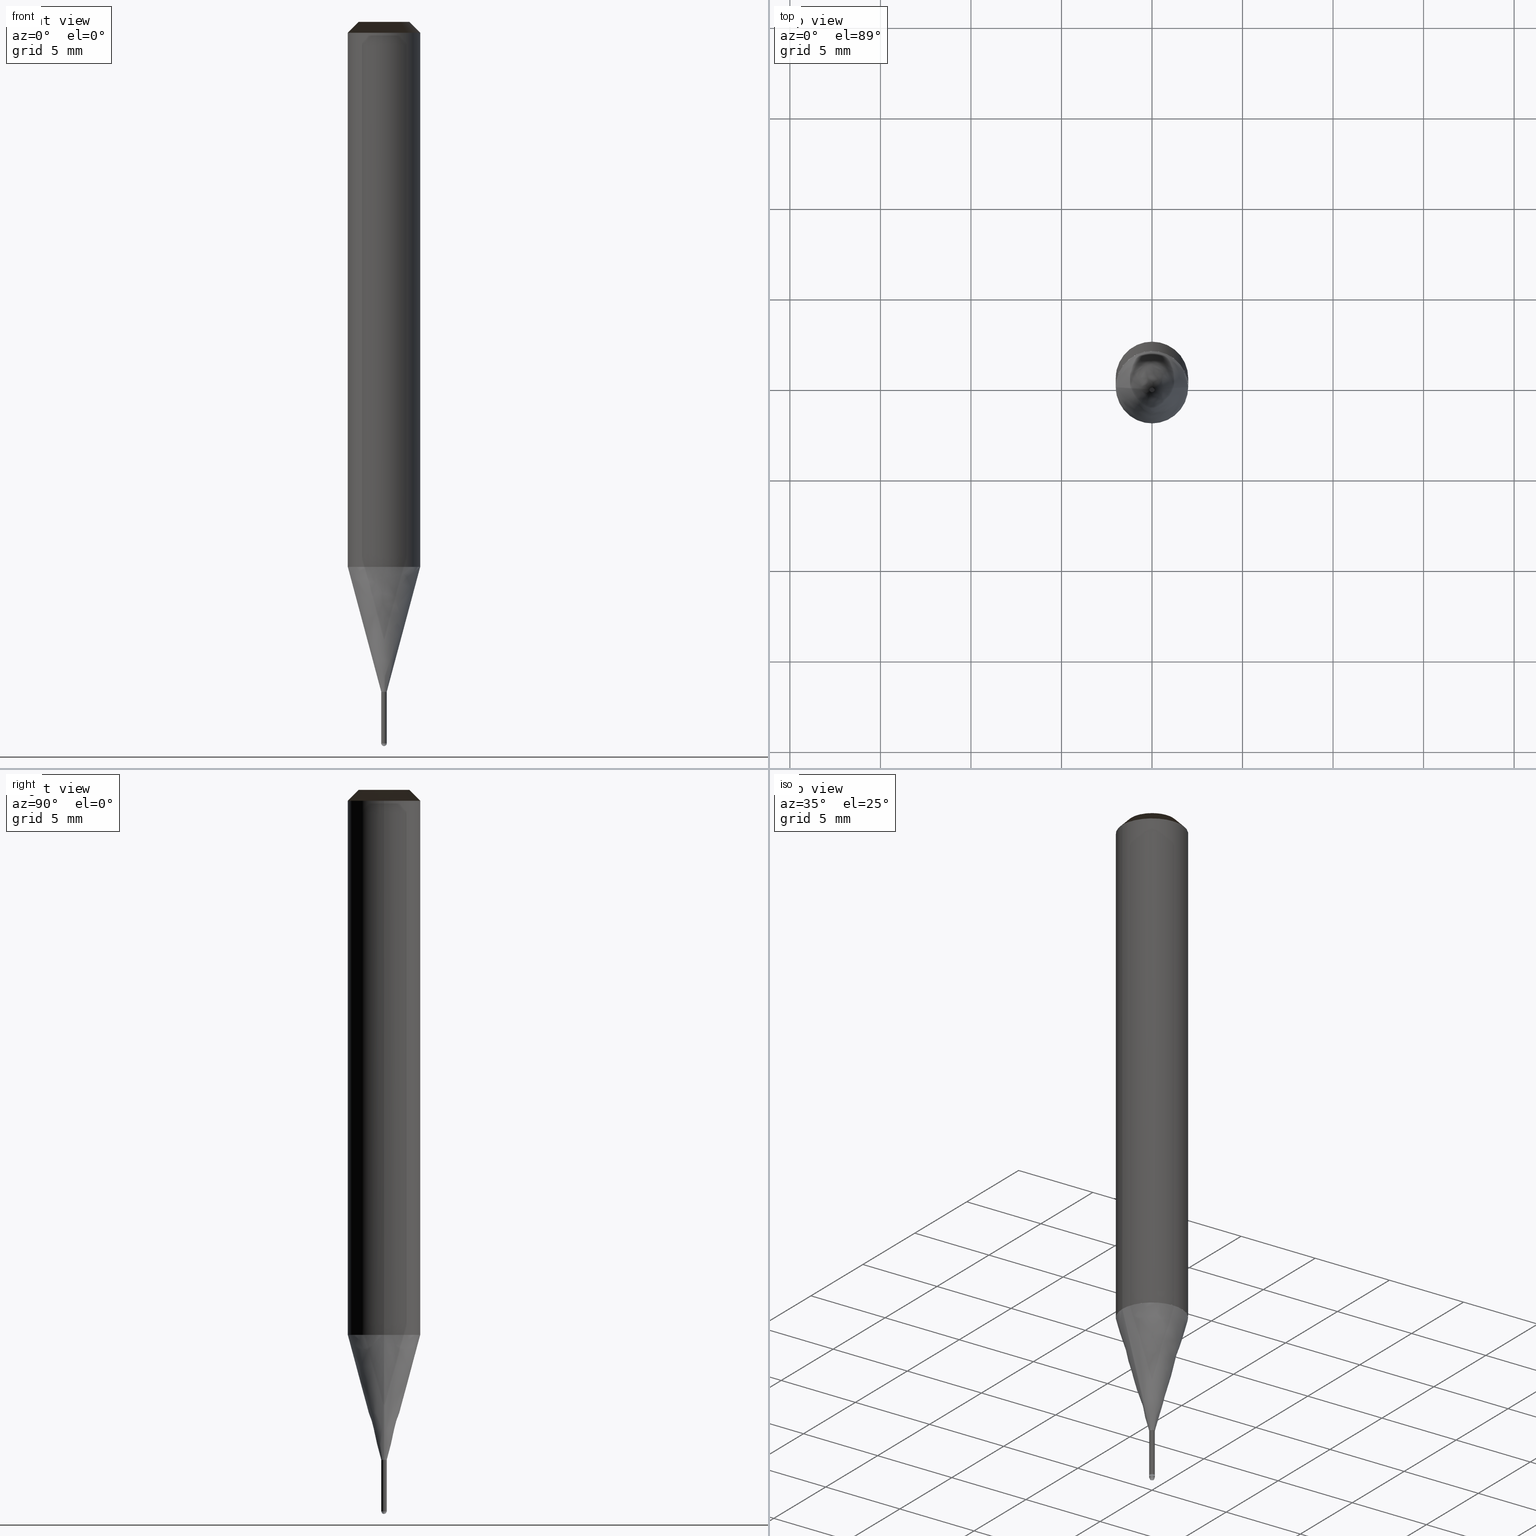
[diagram: canonical four-view strip — front | top / right | iso, engineering-drawing reading convention]
A machine part, canonical four-view strip (front | top / right | iso — engineering-drawing reading convention). The complete STEP part file that produces these views, byte-faithful:
ISO-10303-21;
HEADER;
/* Generated by ISBE GmbH (www.isbe.de) */
/* OPTION: using custom schema-name function */

FILE_DESCRIPTION(
/* description */ (''),
/* implementation_level */ '2;1');

FILE_NAME(
/*name*/ 'SHBN-2003-030-S04-STH',
/*time_stamp*/'2023-6-19T8:48:45',
/*author*/ ('ISBE GmbH'),
/*organization*/ ('ISBE GmbH'),
/*preprocessor_version*/ 'STEP IO v1.0',
/*originating_system*/ '',
/*authorisation*/ '');

FILE_SCHEMA (('AUTOMOTIVE_DESIGN'));
ENDSEC;

DATA;
#10=SHAPE_DEFINITION_REPRESENTATION(#11,#57);
#11=PRODUCT_DEFINITION_SHAPE('Document','',#13);
#12=PRODUCT_DEFINITION_CONTEXT('3D Mechanical Parts',#17,'design');
#13=PRODUCT_DEFINITION('A','First version',#14,#12);
#14=PRODUCT_DEFINITION_FORMATION_WITH_SPECIFIED_SOURCE('A','First version',#19,.MADE.);
#15=PRODUCT_RELATED_PRODUCT_CATEGORY('tool','tool',(#19));
#16=APPLICATION_PROTOCOL_DEFINITION('Draft International Standard', 'automotive_design',1999,#17);
#17=APPLICATION_CONTEXT('data for automotive mechanical design processes');
#18=PRODUCT_CONTEXT('3D Mechanical Parts',#17,'mechanical');
#19=PRODUCT('Document','Document','ISBE converted to STEP',(#18));
#20=(
LENGTH_UNIT()
NAMED_UNIT(*)
SI_UNIT(.MILLI.,.METRE.)
);
#21=(
NAMED_UNIT(*)
PLANE_ANGLE_UNIT()
SI_UNIT($,.RADIAN.)
);
#22=DIMENSIONAL_EXPONENTS(0.,0.,0.,0.,0.,0.,0.);
#23=PLANE_ANGLE_MEASURE_WITH_UNIT(PLANE_ANGLE_MEASURE(0.01745329252),#21);
#24=(
CONVERSION_BASED_UNIT('DEGREES',#23)
NAMED_UNIT(#22)
PLANE_ANGLE_UNIT()
);
#25=(
NAMED_UNIT(*)
SI_UNIT($,.STERADIAN.)
SOLID_ANGLE_UNIT()
);
#26=UNCERTAINTY_MEASURE_WITH_UNIT(LENGTH_MEASURE(0.001),#20, 'DISTANCE_ACCURACY_VALUE', 'Maximum model space distance between geometric entities at asserted connectivities');
#27=(
GEOMETRIC_REPRESENTATION_CONTEXT(3)
GLOBAL_UNCERTAINTY_ASSIGNED_CONTEXT((#26))
GLOBAL_UNIT_ASSIGNED_CONTEXT((#25,#24,#20))
REPRESENTATION_CONTEXT('ID1','3D')
);
#28=CARTESIAN_POINT('',(0.0,0.0,0.0));
#29=DIRECTION('',(1.0,0.0,0.0));
#30=DIRECTION('',(0.0,0.0,1.0));
#31=AXIS2_PLACEMENT_3D('',#28,#30,#29);
#32=CARTESIAN_POINT('',(0.0,0.0,0.0));
#33=DIRECTION('',(1.0,0.0,0.0));
#34=DIRECTION('',(0.0,0.0,1.0));
#35=AXIS2_PLACEMENT_3D('',#32,#34,#33);
#36=CARTESIAN_POINT('',(0.0,0.0,0.0));
#37=DIRECTION('',(1.0,0.0,0.0));
#38=DIRECTION('',(0.0,0.0,1.0));
#39=AXIS2_PLACEMENT_3D('',#36,#38,#37);
#40=CARTESIAN_POINT('',(0.0,0.0,0.0));
#41=DIRECTION('',(0.0,0.0,1.0));
#42=DIRECTION('',(1.0,0.0,0.0));
#43=AXIS2_PLACEMENT_3D('MCS',#40,#42,#41);
#44=CARTESIAN_POINT('',(0.0,0.0,30.1));
#45=DIRECTION('',(0.0,0.0,1.0));
#46=DIRECTION('',(1.0,0.0,0.0));
#47=AXIS2_PLACEMENT_3D('PCS',#44,#46,#45);
#48=CARTESIAN_POINT('',(0.0,0.0,-9.9));
#49=DIRECTION('',(0.0,0.0,1.0));
#50=DIRECTION('',(1.0,0.0,0.0));
#51=AXIS2_PLACEMENT_3D('CIP',#48,#50,#49);
#52=CARTESIAN_POINT('',(0.0,-0.15,-9.9));
#53=DIRECTION('',(0.0,0.0,1.0));
#54=DIRECTION('',(1.0,0.0,0.0));
#55=AXIS2_PLACEMENT_3D('CRP',#52,#54,#53);
#57=SHAPE_REPRESENTATION('Document',(#31,#35,#39,#43,#47,#51,#55),#27);
#58=DIRECTION('',(1.0,0.0,0.0));
#59=DIRECTION('',(0.0,0.0,1.0));
#60=CARTESIAN_POINT('',(-0.001499923603,-0.000015138816,-9.89997595514));
#61=CARTESIAN_POINT('',(-0.001452888116,-0.004582951852,-9.89992293243));
#62=CARTESIAN_POINT('',(-0.001393718691,-0.009508937517,-9.899691808913));
#63=CARTESIAN_POINT('',(-0.001318413159,-0.014342986809,-9.899306866942));
#64=CARTESIAN_POINT('',(-0.001217972769,-0.019142866377,-9.898768502073));
#65=CARTESIAN_POINT('',(-0.001084038307,-0.023915428223,-9.898077267512));
#66=CARTESIAN_POINT('',(-0.000908505309,-0.028659398074,-9.897233873549));
#67=CARTESIAN_POINT('',(-0.000683509458,-0.033371140989,-9.896239186827));
#68=CARTESIAN_POINT('',(-0.000401455123,-0.038046069605,-9.895094229456));
#69=CARTESIAN_POINT('',(-0.000055052818,-0.042679102488,-9.893800177955));
#70=CARTESIAN_POINT('',(0.000362641245,-0.047264841535,-9.892358362052));
#71=CARTESIAN_POINT('',(0.000858185466,-0.051797649426,-9.890770263307));
#72=CARTESIAN_POINT('',(0.001437713799,-0.05627168729,-9.889037513602));
#73=CARTESIAN_POINT('',(0.002106897719,-0.060680935775,-9.887161893452));
#74=CARTESIAN_POINT('',(0.002870909521,-0.065019209528,-9.885145330185));
#75=CARTESIAN_POINT('',(0.003734387187,-0.069280169789,-9.882989895956));
#76=CARTESIAN_POINT('',(0.004701401081,-0.073457337512,-9.880697805619));
#77=CARTESIAN_POINT('',(0.005775422689,-0.077544108271,-9.878271414451));
#78=CARTESIAN_POINT('',(0.006959295677,-0.081533769651,-9.875713215734));
#79=CARTESIAN_POINT('',(0.008255209496,-0.085419521504,-9.87302583819));
#80=CARTESIAN_POINT('',(0.0096646758,-0.089194499226,-9.87021204328));
#81=CARTESIAN_POINT('',(0.011188507917,-0.09285180011,-9.86727472237));
#82=CARTESIAN_POINT('',(0.01282680364,-0.096384512704,-9.864216893755));
#83=CARTESIAN_POINT('',(0.014578931559,-0.099785749048,-9.861041699561));
#84=CARTESIAN_POINT('',(0.016443521182,-0.103048679581,-9.857752402515));
#85=CARTESIAN_POINT('',(0.018418457043,-0.106166570482,-9.854352382591));
#86=CARTESIAN_POINT('',(0.020500877013,-0.109132823125,-9.850845133539));
#87=CARTESIAN_POINT('',(0.022687174967,-0.111941015321,-9.847234259296));
#88=CARTESIAN_POINT('',(0.024973007954,-0.114584943953,-9.843523470279));
#89=CARTESIAN_POINT('',(0.027353307991,-0.117058668588,-9.839716579574));
#90=CARTESIAN_POINT('',(0.029822298536,-0.119356555632,-9.835817499018));
#91=CARTESIAN_POINT('',(0.032373515686,-0.121473322554,-9.831830235182));
#92=CARTESIAN_POINT('',(0.034999834095,-0.123404081693,-9.827758885247));
#93=CARTESIAN_POINT('',(0.03769349754,-0.125144383161,-9.823607632801));
#94=CARTESIAN_POINT('',(0.040446154048,-0.126690256331,-9.819380743536));
#95=CARTESIAN_POINT('',(0.043248895431,-0.128038249422,-9.815082560868));
#96=CARTESIAN_POINT('',(0.046092301025,-0.129185466681,-9.810717501468));
#97=CARTESIAN_POINT('',(0.048966485392,-0.130129602693,-9.806290050732));
#98=CARTESIAN_POINT('',(0.051861149678,-0.13086897335,-9.801804758163));
#99=CARTESIAN_POINT('',(0.054765636304,-0.131402543074,-9.797266232704));
#100=CARTESIAN_POINT('',(0.057668986588,-0.13172994787,-9.792679137995));
#101=CARTESIAN_POINT('',(0.060560000891,-0.131851513884,-9.788048187586));
#102=CARTESIAN_POINT('',(0.063427300809,-0.131768271128,-9.783378140093));
#103=CARTESIAN_POINT('',(0.066259392946,-0.131481962134,-9.778673794305));
#104=CARTESIAN_POINT('',(0.069044733734,-0.130995045317,-9.773939984255));
#105=CARTESIAN_POINT('',(0.071771794776,-0.130310692899,-9.769181574253));
#106=CARTESIAN_POINT('',(0.074429128171,-0.129432783312,-9.764403453886));
#107=CARTESIAN_POINT('',(0.07700543126,-0.128365888039,-9.759610532997));
#108=CARTESIAN_POINT('',(0.079489610255,-0.12711525294,-9.754807736636));
#109=CARTESIAN_POINT('',(0.081870842201,-0.125686774154,-9.75));
#110=CARTESIAN_POINT('',(0.114263997212,-0.097178901728,-9.675));
#111=CARTESIAN_POINT('',(0.137201094047,-0.060628869297,-9.6));
#112=CARTESIAN_POINT('',(0.001499923603,0.000015138816,-9.89997595514));
#113=CARTESIAN_POINT('',(0.001452888116,0.004582951852,-9.89992293243));
#114=CARTESIAN_POINT('',(0.001393718691,0.009508937517,-9.899691808913));
#115=CARTESIAN_POINT('',(0.001318413159,0.014342986809,-9.899306866942));
#116=CARTESIAN_POINT('',(0.001217972769,0.019142866377,-9.898768502073));
#117=CARTESIAN_POINT('',(0.001084038307,0.023915428223,-9.898077267512));
#118=CARTESIAN_POINT('',(0.000908505309,0.028659398074,-9.897233873549));
#119=CARTESIAN_POINT('',(0.000683509458,0.033371140989,-9.896239186827));
#120=CARTESIAN_POINT('',(0.000401455123,0.038046069605,-9.895094229456));
#121=CARTESIAN_POINT('',(0.000055052818,0.042679102488,-9.893800177955));
#122=CARTESIAN_POINT('',(-0.000362641245,0.047264841535,-9.892358362052));
#123=CARTESIAN_POINT('',(-0.000858185466,0.051797649426,-9.890770263307));
#124=CARTESIAN_POINT('',(-0.001437713799,0.05627168729,-9.889037513602));
#125=CARTESIAN_POINT('',(-0.002106897719,0.060680935775,-9.887161893452));
#126=CARTESIAN_POINT('',(-0.002870909521,0.065019209528,-9.885145330185));
#127=CARTESIAN_POINT('',(-0.003734387187,0.069280169789,-9.882989895956));
#128=CARTESIAN_POINT('',(-0.004701401081,0.073457337512,-9.880697805619));
#129=CARTESIAN_POINT('',(-0.005775422689,0.077544108271,-9.878271414451));
#130=CARTESIAN_POINT('',(-0.006959295677,0.081533769651,-9.875713215734));
#131=CARTESIAN_POINT('',(-0.008255209496,0.085419521504,-9.87302583819));
#132=CARTESIAN_POINT('',(-0.0096646758,0.089194499226,-9.87021204328));
#133=CARTESIAN_POINT('',(-0.011188507917,0.09285180011,-9.86727472237));
#134=CARTESIAN_POINT('',(-0.01282680364,0.096384512704,-9.864216893755));
#135=CARTESIAN_POINT('',(-0.014578931559,0.099785749048,-9.861041699561));
#136=CARTESIAN_POINT('',(-0.016443521182,0.103048679581,-9.857752402515));
#137=CARTESIAN_POINT('',(-0.018418457043,0.106166570482,-9.854352382591));
#138=CARTESIAN_POINT('',(-0.020500877013,0.109132823125,-9.850845133539));
#139=CARTESIAN_POINT('',(-0.022687174967,0.111941015321,-9.847234259296));
#140=CARTESIAN_POINT('',(-0.024973007954,0.114584943953,-9.843523470279));
#141=CARTESIAN_POINT('',(-0.027353307991,0.117058668588,-9.839716579574));
#142=CARTESIAN_POINT('',(-0.029822298536,0.119356555632,-9.835817499018));
#143=CARTESIAN_POINT('',(-0.032373515686,0.121473322554,-9.831830235182));
#144=CARTESIAN_POINT('',(-0.034999834095,0.123404081693,-9.827758885247));
#145=CARTESIAN_POINT('',(-0.03769349754,0.125144383161,-9.823607632801));
#146=CARTESIAN_POINT('',(-0.040446154048,0.126690256331,-9.819380743536));
#147=CARTESIAN_POINT('',(-0.043248895431,0.128038249422,-9.815082560868));
#148=CARTESIAN_POINT('',(-0.046092301025,0.129185466681,-9.810717501468));
#149=CARTESIAN_POINT('',(-0.048966485392,0.130129602693,-9.806290050732));
#150=CARTESIAN_POINT('',(-0.051861149678,0.13086897335,-9.801804758163));
#151=CARTESIAN_POINT('',(-0.054765636304,0.131402543074,-9.797266232704));
#152=CARTESIAN_POINT('',(-0.057668986588,0.13172994787,-9.792679137995));
#153=CARTESIAN_POINT('',(-0.060560000891,0.131851513884,-9.788048187586));
#154=CARTESIAN_POINT('',(-0.063427300809,0.131768271128,-9.783378140093));
#155=CARTESIAN_POINT('',(-0.066259392946,0.131481962134,-9.778673794305));
#156=CARTESIAN_POINT('',(-0.069044733734,0.130995045317,-9.773939984255));
#157=CARTESIAN_POINT('',(-0.071771794776,0.130310692899,-9.769181574253));
#158=CARTESIAN_POINT('',(-0.074429128171,0.129432783312,-9.764403453886));
#159=CARTESIAN_POINT('',(-0.07700543126,0.128365888039,-9.759610532997));
#160=CARTESIAN_POINT('',(-0.079489610255,0.12711525294,-9.754807736636));
#161=CARTESIAN_POINT('',(-0.081870842201,0.125686774154,-9.75));
#162=CARTESIAN_POINT('',(-0.114263997212,0.097178901728,-9.675));
#163=CARTESIAN_POINT('',(-0.137201094047,0.060628869297,-9.6));
#164=CARTESIAN_POINT('',(0.0,0.0,-9.9));
#165=CARTESIAN_POINT('',(0.15,0.0,-9.9));
#166=CARTESIAN_POINT('',(0.15,0.15,-9.9));
#167=CARTESIAN_POINT('',(0.0,0.15,-9.9));
#168=CARTESIAN_POINT('',(-0.15,0.15,-9.9));
#169=CARTESIAN_POINT('',(-0.15,0.0,-9.9));
#170=CARTESIAN_POINT('',(0.15,0.0,-9.75));
#171=CARTESIAN_POINT('',(0.15,0.15,-9.75));
#172=CARTESIAN_POINT('',(0.0,0.15,-9.75));
#173=CARTESIAN_POINT('',(-0.15,0.15,-9.75));
#174=CARTESIAN_POINT('',(-0.15,0.0,-9.75));
#175=CARTESIAN_POINT('',(0.15,0.0,-9.6));
#176=CARTESIAN_POINT('',(0.15,0.15,-9.6));
#177=CARTESIAN_POINT('',(0.0,0.15,-9.6));
#178=CARTESIAN_POINT('',(-0.15,0.15,-9.6));
#179=CARTESIAN_POINT('',(-0.15,0.0,-9.6));
#180=CARTESIAN_POINT('',(0.0,0.0,-9.6));
#181=CARTESIAN_POINT('',(-0.15,-0.15,-9.9));
#182=CARTESIAN_POINT('',(0.0,-0.15,-9.9));
#183=CARTESIAN_POINT('',(0.15,-0.15,-9.9));
#184=CARTESIAN_POINT('',(-0.15,-0.15,-9.75));
#185=CARTESIAN_POINT('',(0.0,-0.15,-9.75));
#186=CARTESIAN_POINT('',(0.15,-0.15,-9.75));
#187=CARTESIAN_POINT('',(-0.15,-0.15,-9.6));
#188=CARTESIAN_POINT('',(0.0,-0.15,-9.6));
#189=CARTESIAN_POINT('',(0.15,-0.15,-9.6));
#190=CARTESIAN_POINT('',(0.15,0.0,-6.904293994002));
#191=CARTESIAN_POINT('',(0.15,0.15,-6.904293994002));
#192=CARTESIAN_POINT('',(0.0,0.15,-6.904293994002));
#193=CARTESIAN_POINT('',(-0.15,0.15,-6.904293994002));
#194=CARTESIAN_POINT('',(-0.15,0.0,-6.904293994002));
#195=CARTESIAN_POINT('',(2.0,0.0,0.0));
#196=CARTESIAN_POINT('',(2.0,2.0,0.0));
#197=CARTESIAN_POINT('',(0.0,2.0,0.0));
#198=CARTESIAN_POINT('',(-2.0,2.0,0.0));
#199=CARTESIAN_POINT('',(-2.0,0.0,0.0));
#200=CARTESIAN_POINT('',(2.0,0.0,29.5));
#201=CARTESIAN_POINT('',(2.0,2.0,29.5));
#202=CARTESIAN_POINT('',(0.0,2.0,29.5));
#203=CARTESIAN_POINT('',(-2.0,2.0,29.5));
#204=CARTESIAN_POINT('',(-2.0,0.0,29.5));
#205=CARTESIAN_POINT('',(1.4,0.0,30.1));
#206=CARTESIAN_POINT('',(1.4,1.4,30.1));
#207=CARTESIAN_POINT('',(0.0,1.4,30.1));
#208=CARTESIAN_POINT('',(-1.4,1.4,30.1));
#209=CARTESIAN_POINT('',(-1.4,0.0,30.1));
#210=CARTESIAN_POINT('',(0.0,0.0,30.1));
#211=CARTESIAN_POINT('',(-0.15,-0.15,-6.904293994002));
#212=CARTESIAN_POINT('',(0.0,-0.15,-6.904293994002));
#213=CARTESIAN_POINT('',(0.15,-0.15,-6.904293994002));
#214=CARTESIAN_POINT('',(-2.0,-2.0,0.0));
#215=CARTESIAN_POINT('',(0.0,-2.0,0.0));
#216=CARTESIAN_POINT('',(2.0,-2.0,0.0));
#217=CARTESIAN_POINT('',(-2.0,-2.0,29.5));
#218=CARTESIAN_POINT('',(0.0,-2.0,29.5));
#219=CARTESIAN_POINT('',(2.0,-2.0,29.5));
#220=CARTESIAN_POINT('',(-1.4,-1.4,30.1));
#221=CARTESIAN_POINT('',(0.0,-1.4,30.1));
#222=CARTESIAN_POINT('',(1.4,-1.4,30.1));
#223=(
BOUNDED_CURVE()
B_SPLINE_CURVE(1,(#60,#61,#62,#63,#64,#65,#66,#67,#68,#69,#70,#71,#72,#73,#74,#75,#76,#77,#78,#79,#80,#81,#82,#83,#84,#85,#86,#87,#88,#89,#90,#91,#92,#93,#94,#95,#96,#97,#98,#99,#100,#101,#102,#103,#104,#105,#106,#107,#108,#109,#110,#111),.UNSPECIFIED.,.F.,.F.)
B_SPLINE_CURVE_WITH_KNOTS((2,1,1,1,1,1,1,1,1,1,1,1,1,1,1,1,1,1,1,1,1,1,1,1,1,1,1,1,1,1,1,1,1,1,1,1,1,1,1,1,1,1,1,1,1,1,1,1,1,1,1,2),
(0.0,0.010800062776,0.022459231616,0.033924962207,0.045345975961,0.056750908206,0.0681495379,0.079546493264,0.090944648426,0.102346264353,0.11375345398,0.125168398129,0.136593453402,0.148031205956,0.159484494178,0.170956411015,0.182450291473,0.193969688459,0.205518339043,0.217100122721,0.228719013082,0.240379024213,0.252084153144,0.263838319706,0.27564530512,0.287508690644,0.29943179757,0.311417629761,0.32346881984,0.33558757999,0.34777565822,0.360034300754,0.372364221068,0.384765575942,0.39723794873,0.409780339925,0.422391164961,0.435068259097,0.447808889118,0.460609771532,0.473467096868,0.48637655963,0.499333393454,0.512332410949,0.525368047731,0.538434410123,0.551525325994,0.564634398227,0.577755060283,0.590880633341,0.795440316671,1.0),.UNSPECIFIED.)
CURVE()
GEOMETRIC_REPRESENTATION_ITEM()
RATIONAL_B_SPLINE_CURVE((1.0,1.0,1.0,1.0,1.0,1.0,1.0,1.0,1.0,1.0,1.0,1.0,1.0,1.0,1.0,1.0,1.0,1.0,1.0,1.0,1.0,1.0,1.0,1.0,1.0,1.0,1.0,1.0,1.0,1.0,1.0,1.0,1.0,1.0,1.0,1.0,1.0,1.0,1.0,1.0,1.0,1.0,1.0,1.0,1.0,1.0,1.0,1.0,1.0,1.0,1.0,1.0))
REPRESENTATION_ITEM('')
);
#224=(
BOUNDED_CURVE()
B_SPLINE_CURVE(1,(#112,#113,#114,#115,#116,#117,#118,#119,#120,#121,#122,#123,#124,#125,#126,#127,#128,#129,#130,#131,#132,#133,#134,#135,#136,#137,#138,#139,#140,#141,#142,#143,#144,#145,#146,#147,#148,#149,#150,#151,#152,#153,#154,#155,#156,#157,#158,#159,#160,#161,#162,#163),.UNSPECIFIED.,.F.,.F.)
B_SPLINE_CURVE_WITH_KNOTS((2,1,1,1,1,1,1,1,1,1,1,1,1,1,1,1,1,1,1,1,1,1,1,1,1,1,1,1,1,1,1,1,1,1,1,1,1,1,1,1,1,1,1,1,1,1,1,1,1,1,1,2),
(0.0,0.010800062776,0.022459231616,0.033924962207,0.045345975961,0.056750908206,0.0681495379,0.079546493264,0.090944648426,0.102346264353,0.11375345398,0.125168398129,0.136593453402,0.148031205956,0.159484494178,0.170956411015,0.182450291473,0.193969688459,0.205518339043,0.217100122721,0.228719013082,0.240379024213,0.252084153144,0.263838319706,0.27564530512,0.287508690644,0.29943179757,0.311417629761,0.32346881984,0.33558757999,0.34777565822,0.360034300754,0.372364221068,0.384765575942,0.39723794873,0.409780339925,0.422391164961,0.435068259097,0.447808889118,0.460609771532,0.473467096868,0.48637655963,0.499333393454,0.512332410949,0.525368047731,0.538434410123,0.551525325994,0.564634398227,0.577755060283,0.590880633341,0.795440316671,1.0),.UNSPECIFIED.)
CURVE()
GEOMETRIC_REPRESENTATION_ITEM()
RATIONAL_B_SPLINE_CURVE((1.0,1.0,1.0,1.0,1.0,1.0,1.0,1.0,1.0,1.0,1.0,1.0,1.0,1.0,1.0,1.0,1.0,1.0,1.0,1.0,1.0,1.0,1.0,1.0,1.0,1.0,1.0,1.0,1.0,1.0,1.0,1.0,1.0,1.0,1.0,1.0,1.0,1.0,1.0,1.0,1.0,1.0,1.0,1.0,1.0,1.0,1.0,1.0,1.0,1.0,1.0,1.0))
REPRESENTATION_ITEM('')
);
#225=SHAPE_REPRESENTATION_RELATIONSHIP('','',#57,#226);
#226=GEOMETRICALLY_BOUNDED_WIREFRAME_SHAPE_REPRESENTATION('Curves',(#227,#31),#27);
#227=GEOMETRIC_CURVE_SET('CurveSet',(#223,#224));
#228=(
BOUNDED_SURFACE()
B_SPLINE_SURFACE(2,2,(
(#164,#164,#164,#164,#164),
(#165,#166,#167,#168,#169),
(#170,#171,#172,#173,#174)
), .UNSPECIFIED.,.F.,.F.,.F.)
B_SPLINE_SURFACE_WITH_KNOTS((3,3),(3,2,3),(
0.0,1.0),(
0.0,0.5,1.0), .UNSPECIFIED.)
GEOMETRIC_REPRESENTATION_ITEM()
RATIONAL_B_SPLINE_SURFACE(((1.0,0.707106781187,1.0,0.707106781187,1.0),
(0.707106781187,0.5,0.707106781187,0.5,0.707106781187),
(1.0,0.707106781187,1.0,0.707106781187,1.0)
))
REPRESENTATION_ITEM('')
SURFACE()
);
#229=(
BOUNDED_CURVE()
B_SPLINE_CURVE(2,(#170,#171,#172,#173,#174),.UNSPECIFIED.,.F.,.F.)
B_SPLINE_CURVE_WITH_KNOTS((3,2,3),
(0.0,0.5,1.0),.UNSPECIFIED.)
CURVE()
GEOMETRIC_REPRESENTATION_ITEM()
RATIONAL_B_SPLINE_CURVE((1.0,0.707106781187,1.0,0.707106781187,1.0))
REPRESENTATION_ITEM('')
);
#230=(
BOUNDED_CURVE()
B_SPLINE_CURVE(2,(#174,#169,#164),.UNSPECIFIED.,.F.,.F.)
B_SPLINE_CURVE_WITH_KNOTS((3,3),
(0.0,1.0),.UNSPECIFIED.)
CURVE()
GEOMETRIC_REPRESENTATION_ITEM()
RATIONAL_B_SPLINE_CURVE((1.0,0.707106781187,1.0))
REPRESENTATION_ITEM('')
);
#231=(
BOUNDED_CURVE()
B_SPLINE_CURVE(2,(#164,#165,#170),.UNSPECIFIED.,.F.,.F.)
B_SPLINE_CURVE_WITH_KNOTS((3,3),
(0.0,1.0),.UNSPECIFIED.)
CURVE()
GEOMETRIC_REPRESENTATION_ITEM()
RATIONAL_B_SPLINE_CURVE((1.0,0.707106781187,1.0))
REPRESENTATION_ITEM('')
);
#232=VERTEX_POINT('',#164);
#233=VERTEX_POINT('',#170);
#234=VERTEX_POINT('',#174);
#235=EDGE_CURVE('',#233,#234,#229,.T.);
#236=EDGE_CURVE('',#234,#232,#230,.T.);
#237=EDGE_CURVE('',#232,#233,#231,.T.);
#238=ORIENTED_EDGE('',*,*,#235,.T.);
#239=ORIENTED_EDGE('',*,*,#236,.T.);
#240=ORIENTED_EDGE('',*,*,#237,.T.);
#241=EDGE_LOOP('',(#238,#239,#240));
#242=FACE_OUTER_BOUND('',#241,.T.);
#243=ADVANCED_FACE('',(#242),#228,.T.);
#244=(
BOUNDED_SURFACE()
B_SPLINE_SURFACE(1,2,(
(#170,#171,#172,#173,#174),
(#175,#176,#177,#178,#179)
), .UNSPECIFIED.,.F.,.F.,.F.)
B_SPLINE_SURFACE_WITH_KNOTS((2,2),(3,2,3),(
0.0,1.0),(
0.0,0.5,1.0), .UNSPECIFIED.)
GEOMETRIC_REPRESENTATION_ITEM()
RATIONAL_B_SPLINE_SURFACE(((1.0,0.707106781187,1.0,0.707106781187,1.0),
(1.0,0.707106781187,1.0,0.707106781187,1.0)
))
REPRESENTATION_ITEM('')
SURFACE()
);
#245=(
BOUNDED_CURVE()
B_SPLINE_CURVE(2,(#175,#176,#177,#178,#179),.UNSPECIFIED.,.F.,.F.)
B_SPLINE_CURVE_WITH_KNOTS((3,2,3),
(0.0,0.5,1.0),.UNSPECIFIED.)
CURVE()
GEOMETRIC_REPRESENTATION_ITEM()
RATIONAL_B_SPLINE_CURVE((1.0,0.707106781187,1.0,0.707106781187,1.0))
REPRESENTATION_ITEM('')
);
#246=(
BOUNDED_CURVE()
B_SPLINE_CURVE(1,(#179,#174),.UNSPECIFIED.,.F.,.F.)
B_SPLINE_CURVE_WITH_KNOTS((2,2),
(0.0,1.0),.UNSPECIFIED.)
CURVE()
GEOMETRIC_REPRESENTATION_ITEM()
RATIONAL_B_SPLINE_CURVE((1.0,1.0))
REPRESENTATION_ITEM('')
);
#247=(
BOUNDED_CURVE()
B_SPLINE_CURVE(2,(#174,#173,#172,#171,#170),.UNSPECIFIED.,.F.,.F.)
B_SPLINE_CURVE_WITH_KNOTS((3,2,3),
(0.0,0.5,1.0),.UNSPECIFIED.)
CURVE()
GEOMETRIC_REPRESENTATION_ITEM()
RATIONAL_B_SPLINE_CURVE((1.0,0.707106781187,1.0,0.707106781187,1.0))
REPRESENTATION_ITEM('')
);
#248=(
BOUNDED_CURVE()
B_SPLINE_CURVE(1,(#170,#175),.UNSPECIFIED.,.F.,.F.)
B_SPLINE_CURVE_WITH_KNOTS((2,2),
(0.0,1.0),.UNSPECIFIED.)
CURVE()
GEOMETRIC_REPRESENTATION_ITEM()
RATIONAL_B_SPLINE_CURVE((1.0,1.0))
REPRESENTATION_ITEM('')
);
#249=VERTEX_POINT('',#170);
#250=VERTEX_POINT('',#174);
#251=VERTEX_POINT('',#175);
#252=VERTEX_POINT('',#179);
#253=EDGE_CURVE('',#251,#252,#245,.T.);
#254=EDGE_CURVE('',#252,#250,#246,.T.);
#255=EDGE_CURVE('',#250,#249,#247,.T.);
#256=EDGE_CURVE('',#249,#251,#248,.T.);
#257=ORIENTED_EDGE('',*,*,#253,.T.);
#258=ORIENTED_EDGE('',*,*,#254,.T.);
#259=ORIENTED_EDGE('',*,*,#255,.T.);
#260=ORIENTED_EDGE('',*,*,#256,.T.);
#261=EDGE_LOOP('',(#257,#258,#259,#260));
#262=FACE_OUTER_BOUND('',#261,.T.);
#263=ADVANCED_FACE('',(#262),#244,.T.);
#264=(
BOUNDED_SURFACE()
B_SPLINE_SURFACE(1,2,(
(#175,#176,#177,#178,#179),
(#180,#180,#180,#180,#180)
), .UNSPECIFIED.,.F.,.F.,.F.)
B_SPLINE_SURFACE_WITH_KNOTS((2,2),(3,2,3),(
0.0,1.0),(
0.0,0.5,1.0), .UNSPECIFIED.)
GEOMETRIC_REPRESENTATION_ITEM()
RATIONAL_B_SPLINE_SURFACE(((1.0,0.707106781187,1.0,0.707106781187,1.0),
(1.0,0.707106781187,1.0,0.707106781187,1.0)
))
REPRESENTATION_ITEM('')
SURFACE()
);
#265=(
BOUNDED_CURVE()
B_SPLINE_CURVE(1,(#180,#175),.UNSPECIFIED.,.F.,.F.)
B_SPLINE_CURVE_WITH_KNOTS((2,2),
(0.0,1.0),.UNSPECIFIED.)
CURVE()
GEOMETRIC_REPRESENTATION_ITEM()
RATIONAL_B_SPLINE_CURVE((1.0,1.0))
REPRESENTATION_ITEM('')
);
#266=(
BOUNDED_CURVE()
B_SPLINE_CURVE(2,(#175,#176,#177,#178,#179),.UNSPECIFIED.,.F.,.F.)
B_SPLINE_CURVE_WITH_KNOTS((3,2,3),
(0.0,0.5,1.0),.UNSPECIFIED.)
CURVE()
GEOMETRIC_REPRESENTATION_ITEM()
RATIONAL_B_SPLINE_CURVE((1.0,0.707106781187,1.0,0.707106781187,1.0))
REPRESENTATION_ITEM('')
);
#267=(
BOUNDED_CURVE()
B_SPLINE_CURVE(1,(#179,#180),.UNSPECIFIED.,.F.,.F.)
B_SPLINE_CURVE_WITH_KNOTS((2,2),
(0.0,1.0),.UNSPECIFIED.)
CURVE()
GEOMETRIC_REPRESENTATION_ITEM()
RATIONAL_B_SPLINE_CURVE((1.0,1.0))
REPRESENTATION_ITEM('')
);
#268=VERTEX_POINT('',#175);
#269=VERTEX_POINT('',#179);
#270=VERTEX_POINT('',#180);
#271=EDGE_CURVE('',#270,#268,#265,.T.);
#272=EDGE_CURVE('',#268,#269,#266,.T.);
#273=EDGE_CURVE('',#269,#270,#267,.T.);
#274=ORIENTED_EDGE('',*,*,#271,.T.);
#275=ORIENTED_EDGE('',*,*,#272,.T.);
#276=ORIENTED_EDGE('',*,*,#273,.T.);
#277=EDGE_LOOP('',(#274,#275,#276));
#278=FACE_OUTER_BOUND('',#277,.T.);
#279=ADVANCED_FACE('',(#278),#264,.T.);
#280=(
BOUNDED_SURFACE()
B_SPLINE_SURFACE(2,2,(
(#164,#164,#164,#164,#164),
(#169,#181,#182,#183,#165),
(#174,#184,#185,#186,#170)
), .UNSPECIFIED.,.F.,.F.,.F.)
B_SPLINE_SURFACE_WITH_KNOTS((3,3),(3,2,3),(
0.0,1.0),(
0.0,0.5,1.0), .UNSPECIFIED.)
GEOMETRIC_REPRESENTATION_ITEM()
RATIONAL_B_SPLINE_SURFACE(((1.0,0.707106781187,1.0,0.707106781187,1.0),
(0.707106781187,0.5,0.707106781187,0.5,0.707106781187),
(1.0,0.707106781187,1.0,0.707106781187,1.0)
))
REPRESENTATION_ITEM('')
SURFACE()
);
#281=(
BOUNDED_CURVE()
B_SPLINE_CURVE(2,(#174,#169,#164),.UNSPECIFIED.,.F.,.F.)
B_SPLINE_CURVE_WITH_KNOTS((3,3),
(0.0,1.0),.UNSPECIFIED.)
CURVE()
GEOMETRIC_REPRESENTATION_ITEM()
RATIONAL_B_SPLINE_CURVE((1.0,0.707106781187,1.0))
REPRESENTATION_ITEM('')
);
#282=(
BOUNDED_CURVE()
B_SPLINE_CURVE(2,(#164,#165,#170),.UNSPECIFIED.,.F.,.F.)
B_SPLINE_CURVE_WITH_KNOTS((3,3),
(0.0,1.0),.UNSPECIFIED.)
CURVE()
GEOMETRIC_REPRESENTATION_ITEM()
RATIONAL_B_SPLINE_CURVE((1.0,0.707106781187,1.0))
REPRESENTATION_ITEM('')
);
#283=(
BOUNDED_CURVE()
B_SPLINE_CURVE(2,(#170,#186,#185,#184,#174),.UNSPECIFIED.,.F.,.F.)
B_SPLINE_CURVE_WITH_KNOTS((3,2,3),
(0.0,0.5,1.0),.UNSPECIFIED.)
CURVE()
GEOMETRIC_REPRESENTATION_ITEM()
RATIONAL_B_SPLINE_CURVE((1.0,0.707106781187,1.0,0.707106781187,1.0))
REPRESENTATION_ITEM('')
);
#284=VERTEX_POINT('',#164);
#285=VERTEX_POINT('',#170);
#286=VERTEX_POINT('',#174);
#287=EDGE_CURVE('',#286,#284,#281,.T.);
#288=EDGE_CURVE('',#284,#285,#282,.T.);
#289=EDGE_CURVE('',#285,#286,#283,.T.);
#290=ORIENTED_EDGE('',*,*,#287,.T.);
#291=ORIENTED_EDGE('',*,*,#288,.T.);
#292=ORIENTED_EDGE('',*,*,#289,.T.);
#293=EDGE_LOOP('',(#290,#291,#292));
#294=FACE_OUTER_BOUND('',#293,.T.);
#295=ADVANCED_FACE('',(#294),#280,.T.);
#296=(
BOUNDED_SURFACE()
B_SPLINE_SURFACE(1,2,(
(#174,#184,#185,#186,#170),
(#179,#187,#188,#189,#175)
), .UNSPECIFIED.,.F.,.F.,.F.)
B_SPLINE_SURFACE_WITH_KNOTS((2,2),(3,2,3),(
0.0,1.0),(
0.0,0.5,1.0), .UNSPECIFIED.)
GEOMETRIC_REPRESENTATION_ITEM()
RATIONAL_B_SPLINE_SURFACE(((1.0,0.707106781187,1.0,0.707106781187,1.0),
(1.0,0.707106781187,1.0,0.707106781187,1.0)
))
REPRESENTATION_ITEM('')
SURFACE()
);
#297=(
BOUNDED_CURVE()
B_SPLINE_CURVE(1,(#179,#174),.UNSPECIFIED.,.F.,.F.)
B_SPLINE_CURVE_WITH_KNOTS((2,2),
(0.0,1.0),.UNSPECIFIED.)
CURVE()
GEOMETRIC_REPRESENTATION_ITEM()
RATIONAL_B_SPLINE_CURVE((1.0,1.0))
REPRESENTATION_ITEM('')
);
#298=(
BOUNDED_CURVE()
B_SPLINE_CURVE(2,(#174,#184,#185,#186,#170),.UNSPECIFIED.,.F.,.F.)
B_SPLINE_CURVE_WITH_KNOTS((3,2,3),
(0.0,0.5,1.0),.UNSPECIFIED.)
CURVE()
GEOMETRIC_REPRESENTATION_ITEM()
RATIONAL_B_SPLINE_CURVE((1.0,0.707106781187,1.0,0.707106781187,1.0))
REPRESENTATION_ITEM('')
);
#299=(
BOUNDED_CURVE()
B_SPLINE_CURVE(1,(#170,#175),.UNSPECIFIED.,.F.,.F.)
B_SPLINE_CURVE_WITH_KNOTS((2,2),
(0.0,1.0),.UNSPECIFIED.)
CURVE()
GEOMETRIC_REPRESENTATION_ITEM()
RATIONAL_B_SPLINE_CURVE((1.0,1.0))
REPRESENTATION_ITEM('')
);
#300=(
BOUNDED_CURVE()
B_SPLINE_CURVE(2,(#175,#189,#188,#187,#179),.UNSPECIFIED.,.F.,.F.)
B_SPLINE_CURVE_WITH_KNOTS((3,2,3),
(0.0,0.5,1.0),.UNSPECIFIED.)
CURVE()
GEOMETRIC_REPRESENTATION_ITEM()
RATIONAL_B_SPLINE_CURVE((1.0,0.707106781187,1.0,0.707106781187,1.0))
REPRESENTATION_ITEM('')
);
#301=VERTEX_POINT('',#170);
#302=VERTEX_POINT('',#174);
#303=VERTEX_POINT('',#175);
#304=VERTEX_POINT('',#179);
#305=EDGE_CURVE('',#304,#302,#297,.T.);
#306=EDGE_CURVE('',#302,#301,#298,.T.);
#307=EDGE_CURVE('',#301,#303,#299,.T.);
#308=EDGE_CURVE('',#303,#304,#300,.T.);
#309=ORIENTED_EDGE('',*,*,#305,.T.);
#310=ORIENTED_EDGE('',*,*,#306,.T.);
#311=ORIENTED_EDGE('',*,*,#307,.T.);
#312=ORIENTED_EDGE('',*,*,#308,.T.);
#313=EDGE_LOOP('',(#309,#310,#311,#312));
#314=FACE_OUTER_BOUND('',#313,.T.);
#315=ADVANCED_FACE('',(#314),#296,.T.);
#316=(
BOUNDED_SURFACE()
B_SPLINE_SURFACE(1,2,(
(#179,#187,#188,#189,#175),
(#180,#180,#180,#180,#180)
), .UNSPECIFIED.,.F.,.F.,.F.)
B_SPLINE_SURFACE_WITH_KNOTS((2,2),(3,2,3),(
0.0,1.0),(
0.0,0.5,1.0), .UNSPECIFIED.)
GEOMETRIC_REPRESENTATION_ITEM()
RATIONAL_B_SPLINE_SURFACE(((1.0,0.707106781187,1.0,0.707106781187,1.0),
(1.0,0.707106781187,1.0,0.707106781187,1.0)
))
REPRESENTATION_ITEM('')
SURFACE()
);
#317=(
BOUNDED_CURVE()
B_SPLINE_CURVE(1,(#180,#175),.UNSPECIFIED.,.F.,.F.)
B_SPLINE_CURVE_WITH_KNOTS((2,2),
(0.0,1.0),.UNSPECIFIED.)
CURVE()
GEOMETRIC_REPRESENTATION_ITEM()
RATIONAL_B_SPLINE_CURVE((1.0,1.0))
REPRESENTATION_ITEM('')
);
#318=(
BOUNDED_CURVE()
B_SPLINE_CURVE(2,(#175,#189,#188,#187,#179),.UNSPECIFIED.,.F.,.F.)
B_SPLINE_CURVE_WITH_KNOTS((3,2,3),
(0.0,0.5,1.0),.UNSPECIFIED.)
CURVE()
GEOMETRIC_REPRESENTATION_ITEM()
RATIONAL_B_SPLINE_CURVE((1.0,0.707106781187,1.0,0.707106781187,1.0))
REPRESENTATION_ITEM('')
);
#319=(
BOUNDED_CURVE()
B_SPLINE_CURVE(1,(#179,#180),.UNSPECIFIED.,.F.,.F.)
B_SPLINE_CURVE_WITH_KNOTS((2,2),
(0.0,1.0),.UNSPECIFIED.)
CURVE()
GEOMETRIC_REPRESENTATION_ITEM()
RATIONAL_B_SPLINE_CURVE((1.0,1.0))
REPRESENTATION_ITEM('')
);
#320=VERTEX_POINT('',#175);
#321=VERTEX_POINT('',#179);
#322=VERTEX_POINT('',#180);
#323=EDGE_CURVE('',#322,#320,#317,.T.);
#324=EDGE_CURVE('',#320,#321,#318,.T.);
#325=EDGE_CURVE('',#321,#322,#319,.T.);
#326=ORIENTED_EDGE('',*,*,#323,.T.);
#327=ORIENTED_EDGE('',*,*,#324,.T.);
#328=ORIENTED_EDGE('',*,*,#325,.T.);
#329=EDGE_LOOP('',(#326,#327,#328));
#330=FACE_OUTER_BOUND('',#329,.T.);
#331=ADVANCED_FACE('',(#330),#316,.T.);
#332=CLOSED_SHELL('',(#243,#263,#279,#295,#315,#331));
#333=SHAPE_REPRESENTATION_RELATIONSHIP('','',#57,#334);
#334=ADVANCED_BREP_SHAPE_REPRESENTATION('Solid0',(#335,#31),#27);
#335=MANIFOLD_SOLID_BREP('brep',#332);
#336=(
BOUNDED_SURFACE()
B_SPLINE_SURFACE(1,2,(
(#180,#180,#180,#180,#180),
(#175,#176,#177,#178,#179)
), .UNSPECIFIED.,.F.,.F.,.F.)
B_SPLINE_SURFACE_WITH_KNOTS((2,2),(3,2,3),(
0.0,1.0),(
0.0,0.5,1.0), .UNSPECIFIED.)
GEOMETRIC_REPRESENTATION_ITEM()
RATIONAL_B_SPLINE_SURFACE(((1.0,0.707106781187,1.0,0.707106781187,1.0),
(1.0,0.707106781187,1.0,0.707106781187,1.0)
))
REPRESENTATION_ITEM('')
SURFACE()
);
#337=(
BOUNDED_CURVE()
B_SPLINE_CURVE(2,(#175,#176,#177,#178,#179),.UNSPECIFIED.,.F.,.F.)
B_SPLINE_CURVE_WITH_KNOTS((3,2,3),
(0.0,0.5,1.0),.UNSPECIFIED.)
CURVE()
GEOMETRIC_REPRESENTATION_ITEM()
RATIONAL_B_SPLINE_CURVE((1.0,0.707106781187,1.0,0.707106781187,1.0))
REPRESENTATION_ITEM('')
);
#338=(
BOUNDED_CURVE()
B_SPLINE_CURVE(1,(#179,#180),.UNSPECIFIED.,.F.,.F.)
B_SPLINE_CURVE_WITH_KNOTS((2,2),
(0.0,1.0),.UNSPECIFIED.)
CURVE()
GEOMETRIC_REPRESENTATION_ITEM()
RATIONAL_B_SPLINE_CURVE((1.0,1.0))
REPRESENTATION_ITEM('')
);
#339=(
BOUNDED_CURVE()
B_SPLINE_CURVE(1,(#180,#175),.UNSPECIFIED.,.F.,.F.)
B_SPLINE_CURVE_WITH_KNOTS((2,2),
(0.0,1.0),.UNSPECIFIED.)
CURVE()
GEOMETRIC_REPRESENTATION_ITEM()
RATIONAL_B_SPLINE_CURVE((1.0,1.0))
REPRESENTATION_ITEM('')
);
#340=VERTEX_POINT('',#175);
#341=VERTEX_POINT('',#179);
#342=VERTEX_POINT('',#180);
#343=EDGE_CURVE('',#340,#341,#337,.T.);
#344=EDGE_CURVE('',#341,#342,#338,.T.);
#345=EDGE_CURVE('',#342,#340,#339,.T.);
#346=ORIENTED_EDGE('',*,*,#343,.T.);
#347=ORIENTED_EDGE('',*,*,#344,.T.);
#348=ORIENTED_EDGE('',*,*,#345,.T.);
#349=EDGE_LOOP('',(#346,#347,#348));
#350=FACE_OUTER_BOUND('',#349,.T.);
#351=ADVANCED_FACE('',(#350),#336,.T.);
#352=(
BOUNDED_SURFACE()
B_SPLINE_SURFACE(1,2,(
(#175,#176,#177,#178,#179),
(#190,#191,#192,#193,#194)
), .UNSPECIFIED.,.F.,.F.,.F.)
B_SPLINE_SURFACE_WITH_KNOTS((2,2),(3,2,3),(
0.0,1.0),(
0.0,0.5,1.0), .UNSPECIFIED.)
GEOMETRIC_REPRESENTATION_ITEM()
RATIONAL_B_SPLINE_SURFACE(((1.0,0.707106781187,1.0,0.707106781187,1.0),
(1.0,0.707106781187,1.0,0.707106781187,1.0)
))
REPRESENTATION_ITEM('')
SURFACE()
);
#353=(
BOUNDED_CURVE()
B_SPLINE_CURVE(2,(#190,#191,#192,#193,#194),.UNSPECIFIED.,.F.,.F.)
B_SPLINE_CURVE_WITH_KNOTS((3,2,3),
(0.0,0.5,1.0),.UNSPECIFIED.)
CURVE()
GEOMETRIC_REPRESENTATION_ITEM()
RATIONAL_B_SPLINE_CURVE((1.0,0.707106781187,1.0,0.707106781187,1.0))
REPRESENTATION_ITEM('')
);
#354=(
BOUNDED_CURVE()
B_SPLINE_CURVE(1,(#194,#179),.UNSPECIFIED.,.F.,.F.)
B_SPLINE_CURVE_WITH_KNOTS((2,2),
(0.0,1.0),.UNSPECIFIED.)
CURVE()
GEOMETRIC_REPRESENTATION_ITEM()
RATIONAL_B_SPLINE_CURVE((1.0,1.0))
REPRESENTATION_ITEM('')
);
#355=(
BOUNDED_CURVE()
B_SPLINE_CURVE(2,(#179,#178,#177,#176,#175),.UNSPECIFIED.,.F.,.F.)
B_SPLINE_CURVE_WITH_KNOTS((3,2,3),
(0.0,0.5,1.0),.UNSPECIFIED.)
CURVE()
GEOMETRIC_REPRESENTATION_ITEM()
RATIONAL_B_SPLINE_CURVE((1.0,0.707106781187,1.0,0.707106781187,1.0))
REPRESENTATION_ITEM('')
);
#356=(
BOUNDED_CURVE()
B_SPLINE_CURVE(1,(#175,#190),.UNSPECIFIED.,.F.,.F.)
B_SPLINE_CURVE_WITH_KNOTS((2,2),
(0.0,1.0),.UNSPECIFIED.)
CURVE()
GEOMETRIC_REPRESENTATION_ITEM()
RATIONAL_B_SPLINE_CURVE((1.0,1.0))
REPRESENTATION_ITEM('')
);
#357=VERTEX_POINT('',#175);
#358=VERTEX_POINT('',#179);
#359=VERTEX_POINT('',#190);
#360=VERTEX_POINT('',#194);
#361=EDGE_CURVE('',#359,#360,#353,.T.);
#362=EDGE_CURVE('',#360,#358,#354,.T.);
#363=EDGE_CURVE('',#358,#357,#355,.T.);
#364=EDGE_CURVE('',#357,#359,#356,.T.);
#365=ORIENTED_EDGE('',*,*,#361,.T.);
#366=ORIENTED_EDGE('',*,*,#362,.T.);
#367=ORIENTED_EDGE('',*,*,#363,.T.);
#368=ORIENTED_EDGE('',*,*,#364,.T.);
#369=EDGE_LOOP('',(#365,#366,#367,#368));
#370=FACE_OUTER_BOUND('',#369,.T.);
#371=ADVANCED_FACE('',(#370),#352,.T.);
#372=(
BOUNDED_SURFACE()
B_SPLINE_SURFACE(1,2,(
(#190,#191,#192,#193,#194),
(#195,#196,#197,#198,#199)
), .UNSPECIFIED.,.F.,.F.,.F.)
B_SPLINE_SURFACE_WITH_KNOTS((2,2),(3,2,3),(
0.0,1.0),(
0.0,0.5,1.0), .UNSPECIFIED.)
GEOMETRIC_REPRESENTATION_ITEM()
RATIONAL_B_SPLINE_SURFACE(((1.0,0.707106781187,1.0,0.707106781187,1.0),
(1.0,0.707106781187,1.0,0.707106781187,1.0)
))
REPRESENTATION_ITEM('')
SURFACE()
);
#373=(
BOUNDED_CURVE()
B_SPLINE_CURVE(2,(#195,#196,#197,#198,#199),.UNSPECIFIED.,.F.,.F.)
B_SPLINE_CURVE_WITH_KNOTS((3,2,3),
(0.0,0.5,1.0),.UNSPECIFIED.)
CURVE()
GEOMETRIC_REPRESENTATION_ITEM()
RATIONAL_B_SPLINE_CURVE((1.0,0.707106781187,1.0,0.707106781187,1.0))
REPRESENTATION_ITEM('')
);
#374=(
BOUNDED_CURVE()
B_SPLINE_CURVE(1,(#199,#194),.UNSPECIFIED.,.F.,.F.)
B_SPLINE_CURVE_WITH_KNOTS((2,2),
(0.0,1.0),.UNSPECIFIED.)
CURVE()
GEOMETRIC_REPRESENTATION_ITEM()
RATIONAL_B_SPLINE_CURVE((1.0,1.0))
REPRESENTATION_ITEM('')
);
#375=(
BOUNDED_CURVE()
B_SPLINE_CURVE(2,(#194,#193,#192,#191,#190),.UNSPECIFIED.,.F.,.F.)
B_SPLINE_CURVE_WITH_KNOTS((3,2,3),
(0.0,0.5,1.0),.UNSPECIFIED.)
CURVE()
GEOMETRIC_REPRESENTATION_ITEM()
RATIONAL_B_SPLINE_CURVE((1.0,0.707106781187,1.0,0.707106781187,1.0))
REPRESENTATION_ITEM('')
);
#376=(
BOUNDED_CURVE()
B_SPLINE_CURVE(1,(#190,#195),.UNSPECIFIED.,.F.,.F.)
B_SPLINE_CURVE_WITH_KNOTS((2,2),
(0.0,1.0),.UNSPECIFIED.)
CURVE()
GEOMETRIC_REPRESENTATION_ITEM()
RATIONAL_B_SPLINE_CURVE((1.0,1.0))
REPRESENTATION_ITEM('')
);
#377=VERTEX_POINT('',#190);
#378=VERTEX_POINT('',#194);
#379=VERTEX_POINT('',#195);
#380=VERTEX_POINT('',#199);
#381=EDGE_CURVE('',#379,#380,#373,.T.);
#382=EDGE_CURVE('',#380,#378,#374,.T.);
#383=EDGE_CURVE('',#378,#377,#375,.T.);
#384=EDGE_CURVE('',#377,#379,#376,.T.);
#385=ORIENTED_EDGE('',*,*,#381,.T.);
#386=ORIENTED_EDGE('',*,*,#382,.T.);
#387=ORIENTED_EDGE('',*,*,#383,.T.);
#388=ORIENTED_EDGE('',*,*,#384,.T.);
#389=EDGE_LOOP('',(#385,#386,#387,#388));
#390=FACE_OUTER_BOUND('',#389,.T.);
#391=ADVANCED_FACE('',(#390),#372,.T.);
#392=(
BOUNDED_SURFACE()
B_SPLINE_SURFACE(1,2,(
(#195,#196,#197,#198,#199),
(#200,#201,#202,#203,#204)
), .UNSPECIFIED.,.F.,.F.,.F.)
B_SPLINE_SURFACE_WITH_KNOTS((2,2),(3,2,3),(
0.0,1.0),(
0.0,0.5,1.0), .UNSPECIFIED.)
GEOMETRIC_REPRESENTATION_ITEM()
RATIONAL_B_SPLINE_SURFACE(((1.0,0.707106781187,1.0,0.707106781187,1.0),
(1.0,0.707106781187,1.0,0.707106781187,1.0)
))
REPRESENTATION_ITEM('')
SURFACE()
);
#393=(
BOUNDED_CURVE()
B_SPLINE_CURVE(2,(#200,#201,#202,#203,#204),.UNSPECIFIED.,.F.,.F.)
B_SPLINE_CURVE_WITH_KNOTS((3,2,3),
(0.0,0.5,1.0),.UNSPECIFIED.)
CURVE()
GEOMETRIC_REPRESENTATION_ITEM()
RATIONAL_B_SPLINE_CURVE((1.0,0.707106781187,1.0,0.707106781187,1.0))
REPRESENTATION_ITEM('')
);
#394=(
BOUNDED_CURVE()
B_SPLINE_CURVE(1,(#204,#199),.UNSPECIFIED.,.F.,.F.)
B_SPLINE_CURVE_WITH_KNOTS((2,2),
(0.0,1.0),.UNSPECIFIED.)
CURVE()
GEOMETRIC_REPRESENTATION_ITEM()
RATIONAL_B_SPLINE_CURVE((1.0,1.0))
REPRESENTATION_ITEM('')
);
#395=(
BOUNDED_CURVE()
B_SPLINE_CURVE(2,(#199,#198,#197,#196,#195),.UNSPECIFIED.,.F.,.F.)
B_SPLINE_CURVE_WITH_KNOTS((3,2,3),
(0.0,0.5,1.0),.UNSPECIFIED.)
CURVE()
GEOMETRIC_REPRESENTATION_ITEM()
RATIONAL_B_SPLINE_CURVE((1.0,0.707106781187,1.0,0.707106781187,1.0))
REPRESENTATION_ITEM('')
);
#396=(
BOUNDED_CURVE()
B_SPLINE_CURVE(1,(#195,#200),.UNSPECIFIED.,.F.,.F.)
B_SPLINE_CURVE_WITH_KNOTS((2,2),
(0.0,1.0),.UNSPECIFIED.)
CURVE()
GEOMETRIC_REPRESENTATION_ITEM()
RATIONAL_B_SPLINE_CURVE((1.0,1.0))
REPRESENTATION_ITEM('')
);
#397=VERTEX_POINT('',#195);
#398=VERTEX_POINT('',#199);
#399=VERTEX_POINT('',#200);
#400=VERTEX_POINT('',#204);
#401=EDGE_CURVE('',#399,#400,#393,.T.);
#402=EDGE_CURVE('',#400,#398,#394,.T.);
#403=EDGE_CURVE('',#398,#397,#395,.T.);
#404=EDGE_CURVE('',#397,#399,#396,.T.);
#405=ORIENTED_EDGE('',*,*,#401,.T.);
#406=ORIENTED_EDGE('',*,*,#402,.T.);
#407=ORIENTED_EDGE('',*,*,#403,.T.);
#408=ORIENTED_EDGE('',*,*,#404,.T.);
#409=EDGE_LOOP('',(#405,#406,#407,#408));
#410=FACE_OUTER_BOUND('',#409,.T.);
#411=ADVANCED_FACE('',(#410),#392,.T.);
#412=(
BOUNDED_SURFACE()
B_SPLINE_SURFACE(1,2,(
(#200,#201,#202,#203,#204),
(#205,#206,#207,#208,#209)
), .UNSPECIFIED.,.F.,.F.,.F.)
B_SPLINE_SURFACE_WITH_KNOTS((2,2),(3,2,3),(
0.0,1.0),(
0.0,0.5,1.0), .UNSPECIFIED.)
GEOMETRIC_REPRESENTATION_ITEM()
RATIONAL_B_SPLINE_SURFACE(((1.0,0.707106781187,1.0,0.707106781187,1.0),
(1.0,0.707106781187,1.0,0.707106781187,1.0)
))
REPRESENTATION_ITEM('')
SURFACE()
);
#413=(
BOUNDED_CURVE()
B_SPLINE_CURVE(1,(#205,#200),.UNSPECIFIED.,.F.,.F.)
B_SPLINE_CURVE_WITH_KNOTS((2,2),
(0.0,1.0),.UNSPECIFIED.)
CURVE()
GEOMETRIC_REPRESENTATION_ITEM()
RATIONAL_B_SPLINE_CURVE((1.0,1.0))
REPRESENTATION_ITEM('')
);
#414=(
BOUNDED_CURVE()
B_SPLINE_CURVE(2,(#200,#201,#202,#203,#204),.UNSPECIFIED.,.F.,.F.)
B_SPLINE_CURVE_WITH_KNOTS((3,2,3),
(0.0,0.5,1.0),.UNSPECIFIED.)
CURVE()
GEOMETRIC_REPRESENTATION_ITEM()
RATIONAL_B_SPLINE_CURVE((1.0,0.707106781187,1.0,0.707106781187,1.0))
REPRESENTATION_ITEM('')
);
#415=(
BOUNDED_CURVE()
B_SPLINE_CURVE(1,(#204,#209),.UNSPECIFIED.,.F.,.F.)
B_SPLINE_CURVE_WITH_KNOTS((2,2),
(0.0,1.0),.UNSPECIFIED.)
CURVE()
GEOMETRIC_REPRESENTATION_ITEM()
RATIONAL_B_SPLINE_CURVE((1.0,1.0))
REPRESENTATION_ITEM('')
);
#416=(
BOUNDED_CURVE()
B_SPLINE_CURVE(2,(#209,#208,#207,#206,#205),.UNSPECIFIED.,.F.,.F.)
B_SPLINE_CURVE_WITH_KNOTS((3,2,3),
(0.0,0.5,1.0),.UNSPECIFIED.)
CURVE()
GEOMETRIC_REPRESENTATION_ITEM()
RATIONAL_B_SPLINE_CURVE((1.0,0.707106781187,1.0,0.707106781187,1.0))
REPRESENTATION_ITEM('')
);
#417=VERTEX_POINT('',#200);
#418=VERTEX_POINT('',#204);
#419=VERTEX_POINT('',#205);
#420=VERTEX_POINT('',#209);
#421=EDGE_CURVE('',#419,#417,#413,.T.);
#422=EDGE_CURVE('',#417,#418,#414,.T.);
#423=EDGE_CURVE('',#418,#420,#415,.T.);
#424=EDGE_CURVE('',#420,#419,#416,.T.);
#425=ORIENTED_EDGE('',*,*,#421,.T.);
#426=ORIENTED_EDGE('',*,*,#422,.T.);
#427=ORIENTED_EDGE('',*,*,#423,.T.);
#428=ORIENTED_EDGE('',*,*,#424,.T.);
#429=EDGE_LOOP('',(#425,#426,#427,#428));
#430=FACE_OUTER_BOUND('',#429,.T.);
#431=ADVANCED_FACE('',(#430),#412,.T.);
#432=(
BOUNDED_SURFACE()
B_SPLINE_SURFACE(1,2,(
(#205,#206,#207,#208,#209),
(#210,#210,#210,#210,#210)
), .UNSPECIFIED.,.F.,.F.,.F.)
B_SPLINE_SURFACE_WITH_KNOTS((2,2),(3,2,3),(
0.0,1.0),(
0.0,0.5,1.0), .UNSPECIFIED.)
GEOMETRIC_REPRESENTATION_ITEM()
RATIONAL_B_SPLINE_SURFACE(((1.0,0.707106781187,1.0,0.707106781187,1.0),
(1.0,0.707106781187,1.0,0.707106781187,1.0)
))
REPRESENTATION_ITEM('')
SURFACE()
);
#433=(
BOUNDED_CURVE()
B_SPLINE_CURVE(1,(#210,#205),.UNSPECIFIED.,.F.,.F.)
B_SPLINE_CURVE_WITH_KNOTS((2,2),
(0.0,1.0),.UNSPECIFIED.)
CURVE()
GEOMETRIC_REPRESENTATION_ITEM()
RATIONAL_B_SPLINE_CURVE((1.0,1.0))
REPRESENTATION_ITEM('')
);
#434=(
BOUNDED_CURVE()
B_SPLINE_CURVE(2,(#205,#206,#207,#208,#209),.UNSPECIFIED.,.F.,.F.)
B_SPLINE_CURVE_WITH_KNOTS((3,2,3),
(0.0,0.5,1.0),.UNSPECIFIED.)
CURVE()
GEOMETRIC_REPRESENTATION_ITEM()
RATIONAL_B_SPLINE_CURVE((1.0,0.707106781187,1.0,0.707106781187,1.0))
REPRESENTATION_ITEM('')
);
#435=(
BOUNDED_CURVE()
B_SPLINE_CURVE(1,(#209,#210),.UNSPECIFIED.,.F.,.F.)
B_SPLINE_CURVE_WITH_KNOTS((2,2),
(0.0,1.0),.UNSPECIFIED.)
CURVE()
GEOMETRIC_REPRESENTATION_ITEM()
RATIONAL_B_SPLINE_CURVE((1.0,1.0))
REPRESENTATION_ITEM('')
);
#436=VERTEX_POINT('',#205);
#437=VERTEX_POINT('',#209);
#438=VERTEX_POINT('',#210);
#439=EDGE_CURVE('',#438,#436,#433,.T.);
#440=EDGE_CURVE('',#436,#437,#434,.T.);
#441=EDGE_CURVE('',#437,#438,#435,.T.);
#442=ORIENTED_EDGE('',*,*,#439,.T.);
#443=ORIENTED_EDGE('',*,*,#440,.T.);
#444=ORIENTED_EDGE('',*,*,#441,.T.);
#445=EDGE_LOOP('',(#442,#443,#444));
#446=FACE_OUTER_BOUND('',#445,.T.);
#447=ADVANCED_FACE('',(#446),#432,.T.);
#448=(
BOUNDED_SURFACE()
B_SPLINE_SURFACE(1,2,(
(#180,#180,#180,#180,#180),
(#179,#187,#188,#189,#175)
), .UNSPECIFIED.,.F.,.F.,.F.)
B_SPLINE_SURFACE_WITH_KNOTS((2,2),(3,2,3),(
0.0,1.0),(
0.0,0.5,1.0), .UNSPECIFIED.)
GEOMETRIC_REPRESENTATION_ITEM()
RATIONAL_B_SPLINE_SURFACE(((1.0,0.707106781187,1.0,0.707106781187,1.0),
(1.0,0.707106781187,1.0,0.707106781187,1.0)
))
REPRESENTATION_ITEM('')
SURFACE()
);
#449=(
BOUNDED_CURVE()
B_SPLINE_CURVE(1,(#179,#180),.UNSPECIFIED.,.F.,.F.)
B_SPLINE_CURVE_WITH_KNOTS((2,2),
(0.0,1.0),.UNSPECIFIED.)
CURVE()
GEOMETRIC_REPRESENTATION_ITEM()
RATIONAL_B_SPLINE_CURVE((1.0,1.0))
REPRESENTATION_ITEM('')
);
#450=(
BOUNDED_CURVE()
B_SPLINE_CURVE(1,(#180,#175),.UNSPECIFIED.,.F.,.F.)
B_SPLINE_CURVE_WITH_KNOTS((2,2),
(0.0,1.0),.UNSPECIFIED.)
CURVE()
GEOMETRIC_REPRESENTATION_ITEM()
RATIONAL_B_SPLINE_CURVE((1.0,1.0))
REPRESENTATION_ITEM('')
);
#451=(
BOUNDED_CURVE()
B_SPLINE_CURVE(2,(#175,#189,#188,#187,#179),.UNSPECIFIED.,.F.,.F.)
B_SPLINE_CURVE_WITH_KNOTS((3,2,3),
(0.0,0.5,1.0),.UNSPECIFIED.)
CURVE()
GEOMETRIC_REPRESENTATION_ITEM()
RATIONAL_B_SPLINE_CURVE((1.0,0.707106781187,1.0,0.707106781187,1.0))
REPRESENTATION_ITEM('')
);
#452=VERTEX_POINT('',#175);
#453=VERTEX_POINT('',#179);
#454=VERTEX_POINT('',#180);
#455=EDGE_CURVE('',#453,#454,#449,.T.);
#456=EDGE_CURVE('',#454,#452,#450,.T.);
#457=EDGE_CURVE('',#452,#453,#451,.T.);
#458=ORIENTED_EDGE('',*,*,#455,.T.);
#459=ORIENTED_EDGE('',*,*,#456,.T.);
#460=ORIENTED_EDGE('',*,*,#457,.T.);
#461=EDGE_LOOP('',(#458,#459,#460));
#462=FACE_OUTER_BOUND('',#461,.T.);
#463=ADVANCED_FACE('',(#462),#448,.T.);
#464=(
BOUNDED_SURFACE()
B_SPLINE_SURFACE(1,2,(
(#179,#187,#188,#189,#175),
(#194,#211,#212,#213,#190)
), .UNSPECIFIED.,.F.,.F.,.F.)
B_SPLINE_SURFACE_WITH_KNOTS((2,2),(3,2,3),(
0.0,1.0),(
0.0,0.5,1.0), .UNSPECIFIED.)
GEOMETRIC_REPRESENTATION_ITEM()
RATIONAL_B_SPLINE_SURFACE(((1.0,0.707106781187,1.0,0.707106781187,1.0),
(1.0,0.707106781187,1.0,0.707106781187,1.0)
))
REPRESENTATION_ITEM('')
SURFACE()
);
#465=(
BOUNDED_CURVE()
B_SPLINE_CURVE(1,(#194,#179),.UNSPECIFIED.,.F.,.F.)
B_SPLINE_CURVE_WITH_KNOTS((2,2),
(0.0,1.0),.UNSPECIFIED.)
CURVE()
GEOMETRIC_REPRESENTATION_ITEM()
RATIONAL_B_SPLINE_CURVE((1.0,1.0))
REPRESENTATION_ITEM('')
);
#466=(
BOUNDED_CURVE()
B_SPLINE_CURVE(2,(#179,#187,#188,#189,#175),.UNSPECIFIED.,.F.,.F.)
B_SPLINE_CURVE_WITH_KNOTS((3,2,3),
(0.0,0.5,1.0),.UNSPECIFIED.)
CURVE()
GEOMETRIC_REPRESENTATION_ITEM()
RATIONAL_B_SPLINE_CURVE((1.0,0.707106781187,1.0,0.707106781187,1.0))
REPRESENTATION_ITEM('')
);
#467=(
BOUNDED_CURVE()
B_SPLINE_CURVE(1,(#175,#190),.UNSPECIFIED.,.F.,.F.)
B_SPLINE_CURVE_WITH_KNOTS((2,2),
(0.0,1.0),.UNSPECIFIED.)
CURVE()
GEOMETRIC_REPRESENTATION_ITEM()
RATIONAL_B_SPLINE_CURVE((1.0,1.0))
REPRESENTATION_ITEM('')
);
#468=(
BOUNDED_CURVE()
B_SPLINE_CURVE(2,(#190,#213,#212,#211,#194),.UNSPECIFIED.,.F.,.F.)
B_SPLINE_CURVE_WITH_KNOTS((3,2,3),
(0.0,0.5,1.0),.UNSPECIFIED.)
CURVE()
GEOMETRIC_REPRESENTATION_ITEM()
RATIONAL_B_SPLINE_CURVE((1.0,0.707106781187,1.0,0.707106781187,1.0))
REPRESENTATION_ITEM('')
);
#469=VERTEX_POINT('',#175);
#470=VERTEX_POINT('',#179);
#471=VERTEX_POINT('',#190);
#472=VERTEX_POINT('',#194);
#473=EDGE_CURVE('',#472,#470,#465,.T.);
#474=EDGE_CURVE('',#470,#469,#466,.T.);
#475=EDGE_CURVE('',#469,#471,#467,.T.);
#476=EDGE_CURVE('',#471,#472,#468,.T.);
#477=ORIENTED_EDGE('',*,*,#473,.T.);
#478=ORIENTED_EDGE('',*,*,#474,.T.);
#479=ORIENTED_EDGE('',*,*,#475,.T.);
#480=ORIENTED_EDGE('',*,*,#476,.T.);
#481=EDGE_LOOP('',(#477,#478,#479,#480));
#482=FACE_OUTER_BOUND('',#481,.T.);
#483=ADVANCED_FACE('',(#482),#464,.T.);
#484=(
BOUNDED_SURFACE()
B_SPLINE_SURFACE(1,2,(
(#194,#211,#212,#213,#190),
(#199,#214,#215,#216,#195)
), .UNSPECIFIED.,.F.,.F.,.F.)
B_SPLINE_SURFACE_WITH_KNOTS((2,2),(3,2,3),(
0.0,1.0),(
0.0,0.5,1.0), .UNSPECIFIED.)
GEOMETRIC_REPRESENTATION_ITEM()
RATIONAL_B_SPLINE_SURFACE(((1.0,0.707106781187,1.0,0.707106781187,1.0),
(1.0,0.707106781187,1.0,0.707106781187,1.0)
))
REPRESENTATION_ITEM('')
SURFACE()
);
#485=(
BOUNDED_CURVE()
B_SPLINE_CURVE(1,(#199,#194),.UNSPECIFIED.,.F.,.F.)
B_SPLINE_CURVE_WITH_KNOTS((2,2),
(0.0,1.0),.UNSPECIFIED.)
CURVE()
GEOMETRIC_REPRESENTATION_ITEM()
RATIONAL_B_SPLINE_CURVE((1.0,1.0))
REPRESENTATION_ITEM('')
);
#486=(
BOUNDED_CURVE()
B_SPLINE_CURVE(2,(#194,#211,#212,#213,#190),.UNSPECIFIED.,.F.,.F.)
B_SPLINE_CURVE_WITH_KNOTS((3,2,3),
(0.0,0.5,1.0),.UNSPECIFIED.)
CURVE()
GEOMETRIC_REPRESENTATION_ITEM()
RATIONAL_B_SPLINE_CURVE((1.0,0.707106781187,1.0,0.707106781187,1.0))
REPRESENTATION_ITEM('')
);
#487=(
BOUNDED_CURVE()
B_SPLINE_CURVE(1,(#190,#195),.UNSPECIFIED.,.F.,.F.)
B_SPLINE_CURVE_WITH_KNOTS((2,2),
(0.0,1.0),.UNSPECIFIED.)
CURVE()
GEOMETRIC_REPRESENTATION_ITEM()
RATIONAL_B_SPLINE_CURVE((1.0,1.0))
REPRESENTATION_ITEM('')
);
#488=(
BOUNDED_CURVE()
B_SPLINE_CURVE(2,(#195,#216,#215,#214,#199),.UNSPECIFIED.,.F.,.F.)
B_SPLINE_CURVE_WITH_KNOTS((3,2,3),
(0.0,0.5,1.0),.UNSPECIFIED.)
CURVE()
GEOMETRIC_REPRESENTATION_ITEM()
RATIONAL_B_SPLINE_CURVE((1.0,0.707106781187,1.0,0.707106781187,1.0))
REPRESENTATION_ITEM('')
);
#489=VERTEX_POINT('',#190);
#490=VERTEX_POINT('',#194);
#491=VERTEX_POINT('',#195);
#492=VERTEX_POINT('',#199);
#493=EDGE_CURVE('',#492,#490,#485,.T.);
#494=EDGE_CURVE('',#490,#489,#486,.T.);
#495=EDGE_CURVE('',#489,#491,#487,.T.);
#496=EDGE_CURVE('',#491,#492,#488,.T.);
#497=ORIENTED_EDGE('',*,*,#493,.T.);
#498=ORIENTED_EDGE('',*,*,#494,.T.);
#499=ORIENTED_EDGE('',*,*,#495,.T.);
#500=ORIENTED_EDGE('',*,*,#496,.T.);
#501=EDGE_LOOP('',(#497,#498,#499,#500));
#502=FACE_OUTER_BOUND('',#501,.T.);
#503=ADVANCED_FACE('',(#502),#484,.T.);
#504=(
BOUNDED_SURFACE()
B_SPLINE_SURFACE(1,2,(
(#199,#214,#215,#216,#195),
(#204,#217,#218,#219,#200)
), .UNSPECIFIED.,.F.,.F.,.F.)
B_SPLINE_SURFACE_WITH_KNOTS((2,2),(3,2,3),(
0.0,1.0),(
0.0,0.5,1.0), .UNSPECIFIED.)
GEOMETRIC_REPRESENTATION_ITEM()
RATIONAL_B_SPLINE_SURFACE(((1.0,0.707106781187,1.0,0.707106781187,1.0),
(1.0,0.707106781187,1.0,0.707106781187,1.0)
))
REPRESENTATION_ITEM('')
SURFACE()
);
#505=(
BOUNDED_CURVE()
B_SPLINE_CURVE(1,(#204,#199),.UNSPECIFIED.,.F.,.F.)
B_SPLINE_CURVE_WITH_KNOTS((2,2),
(0.0,1.0),.UNSPECIFIED.)
CURVE()
GEOMETRIC_REPRESENTATION_ITEM()
RATIONAL_B_SPLINE_CURVE((1.0,1.0))
REPRESENTATION_ITEM('')
);
#506=(
BOUNDED_CURVE()
B_SPLINE_CURVE(2,(#199,#214,#215,#216,#195),.UNSPECIFIED.,.F.,.F.)
B_SPLINE_CURVE_WITH_KNOTS((3,2,3),
(0.0,0.5,1.0),.UNSPECIFIED.)
CURVE()
GEOMETRIC_REPRESENTATION_ITEM()
RATIONAL_B_SPLINE_CURVE((1.0,0.707106781187,1.0,0.707106781187,1.0))
REPRESENTATION_ITEM('')
);
#507=(
BOUNDED_CURVE()
B_SPLINE_CURVE(1,(#195,#200),.UNSPECIFIED.,.F.,.F.)
B_SPLINE_CURVE_WITH_KNOTS((2,2),
(0.0,1.0),.UNSPECIFIED.)
CURVE()
GEOMETRIC_REPRESENTATION_ITEM()
RATIONAL_B_SPLINE_CURVE((1.0,1.0))
REPRESENTATION_ITEM('')
);
#508=(
BOUNDED_CURVE()
B_SPLINE_CURVE(2,(#200,#219,#218,#217,#204),.UNSPECIFIED.,.F.,.F.)
B_SPLINE_CURVE_WITH_KNOTS((3,2,3),
(0.0,0.5,1.0),.UNSPECIFIED.)
CURVE()
GEOMETRIC_REPRESENTATION_ITEM()
RATIONAL_B_SPLINE_CURVE((1.0,0.707106781187,1.0,0.707106781187,1.0))
REPRESENTATION_ITEM('')
);
#509=VERTEX_POINT('',#195);
#510=VERTEX_POINT('',#199);
#511=VERTEX_POINT('',#200);
#512=VERTEX_POINT('',#204);
#513=EDGE_CURVE('',#512,#510,#505,.T.);
#514=EDGE_CURVE('',#510,#509,#506,.T.);
#515=EDGE_CURVE('',#509,#511,#507,.T.);
#516=EDGE_CURVE('',#511,#512,#508,.T.);
#517=ORIENTED_EDGE('',*,*,#513,.T.);
#518=ORIENTED_EDGE('',*,*,#514,.T.);
#519=ORIENTED_EDGE('',*,*,#515,.T.);
#520=ORIENTED_EDGE('',*,*,#516,.T.);
#521=EDGE_LOOP('',(#517,#518,#519,#520));
#522=FACE_OUTER_BOUND('',#521,.T.);
#523=ADVANCED_FACE('',(#522),#504,.T.);
#524=(
BOUNDED_SURFACE()
B_SPLINE_SURFACE(1,2,(
(#204,#217,#218,#219,#200),
(#209,#220,#221,#222,#205)
), .UNSPECIFIED.,.F.,.F.,.F.)
B_SPLINE_SURFACE_WITH_KNOTS((2,2),(3,2,3),(
0.0,1.0),(
0.0,0.5,1.0), .UNSPECIFIED.)
GEOMETRIC_REPRESENTATION_ITEM()
RATIONAL_B_SPLINE_SURFACE(((1.0,0.707106781187,1.0,0.707106781187,1.0),
(1.0,0.707106781187,1.0,0.707106781187,1.0)
))
REPRESENTATION_ITEM('')
SURFACE()
);
#525=(
BOUNDED_CURVE()
B_SPLINE_CURVE(2,(#209,#220,#221,#222,#205),.UNSPECIFIED.,.F.,.F.)
B_SPLINE_CURVE_WITH_KNOTS((3,2,3),
(0.0,0.5,1.0),.UNSPECIFIED.)
CURVE()
GEOMETRIC_REPRESENTATION_ITEM()
RATIONAL_B_SPLINE_CURVE((1.0,0.707106781187,1.0,0.707106781187,1.0))
REPRESENTATION_ITEM('')
);
#526=(
BOUNDED_CURVE()
B_SPLINE_CURVE(1,(#205,#200),.UNSPECIFIED.,.F.,.F.)
B_SPLINE_CURVE_WITH_KNOTS((2,2),
(0.0,1.0),.UNSPECIFIED.)
CURVE()
GEOMETRIC_REPRESENTATION_ITEM()
RATIONAL_B_SPLINE_CURVE((1.0,1.0))
REPRESENTATION_ITEM('')
);
#527=(
BOUNDED_CURVE()
B_SPLINE_CURVE(2,(#200,#219,#218,#217,#204),.UNSPECIFIED.,.F.,.F.)
B_SPLINE_CURVE_WITH_KNOTS((3,2,3),
(0.0,0.5,1.0),.UNSPECIFIED.)
CURVE()
GEOMETRIC_REPRESENTATION_ITEM()
RATIONAL_B_SPLINE_CURVE((1.0,0.707106781187,1.0,0.707106781187,1.0))
REPRESENTATION_ITEM('')
);
#528=(
BOUNDED_CURVE()
B_SPLINE_CURVE(1,(#204,#209),.UNSPECIFIED.,.F.,.F.)
B_SPLINE_CURVE_WITH_KNOTS((2,2),
(0.0,1.0),.UNSPECIFIED.)
CURVE()
GEOMETRIC_REPRESENTATION_ITEM()
RATIONAL_B_SPLINE_CURVE((1.0,1.0))
REPRESENTATION_ITEM('')
);
#529=VERTEX_POINT('',#200);
#530=VERTEX_POINT('',#204);
#531=VERTEX_POINT('',#205);
#532=VERTEX_POINT('',#209);
#533=EDGE_CURVE('',#532,#531,#525,.T.);
#534=EDGE_CURVE('',#531,#529,#526,.T.);
#535=EDGE_CURVE('',#529,#530,#527,.T.);
#536=EDGE_CURVE('',#530,#532,#528,.T.);
#537=ORIENTED_EDGE('',*,*,#533,.T.);
#538=ORIENTED_EDGE('',*,*,#534,.T.);
#539=ORIENTED_EDGE('',*,*,#535,.T.);
#540=ORIENTED_EDGE('',*,*,#536,.T.);
#541=EDGE_LOOP('',(#537,#538,#539,#540));
#542=FACE_OUTER_BOUND('',#541,.T.);
#543=ADVANCED_FACE('',(#542),#524,.T.);
#544=(
BOUNDED_SURFACE()
B_SPLINE_SURFACE(1,2,(
(#209,#220,#221,#222,#205),
(#210,#210,#210,#210,#210)
), .UNSPECIFIED.,.F.,.F.,.F.)
B_SPLINE_SURFACE_WITH_KNOTS((2,2),(3,2,3),(
0.0,1.0),(
0.0,0.5,1.0), .UNSPECIFIED.)
GEOMETRIC_REPRESENTATION_ITEM()
RATIONAL_B_SPLINE_SURFACE(((1.0,0.707106781187,1.0,0.707106781187,1.0),
(1.0,0.707106781187,1.0,0.707106781187,1.0)
))
REPRESENTATION_ITEM('')
SURFACE()
);
#545=(
BOUNDED_CURVE()
B_SPLINE_CURVE(1,(#210,#205),.UNSPECIFIED.,.F.,.F.)
B_SPLINE_CURVE_WITH_KNOTS((2,2),
(0.0,1.0),.UNSPECIFIED.)
CURVE()
GEOMETRIC_REPRESENTATION_ITEM()
RATIONAL_B_SPLINE_CURVE((1.0,1.0))
REPRESENTATION_ITEM('')
);
#546=(
BOUNDED_CURVE()
B_SPLINE_CURVE(2,(#205,#222,#221,#220,#209),.UNSPECIFIED.,.F.,.F.)
B_SPLINE_CURVE_WITH_KNOTS((3,2,3),
(0.0,0.5,1.0),.UNSPECIFIED.)
CURVE()
GEOMETRIC_REPRESENTATION_ITEM()
RATIONAL_B_SPLINE_CURVE((1.0,0.707106781187,1.0,0.707106781187,1.0))
REPRESENTATION_ITEM('')
);
#547=(
BOUNDED_CURVE()
B_SPLINE_CURVE(1,(#209,#210),.UNSPECIFIED.,.F.,.F.)
B_SPLINE_CURVE_WITH_KNOTS((2,2),
(0.0,1.0),.UNSPECIFIED.)
CURVE()
GEOMETRIC_REPRESENTATION_ITEM()
RATIONAL_B_SPLINE_CURVE((1.0,1.0))
REPRESENTATION_ITEM('')
);
#548=VERTEX_POINT('',#205);
#549=VERTEX_POINT('',#209);
#550=VERTEX_POINT('',#210);
#551=EDGE_CURVE('',#550,#548,#545,.T.);
#552=EDGE_CURVE('',#548,#549,#546,.T.);
#553=EDGE_CURVE('',#549,#550,#547,.T.);
#554=ORIENTED_EDGE('',*,*,#551,.T.);
#555=ORIENTED_EDGE('',*,*,#552,.T.);
#556=ORIENTED_EDGE('',*,*,#553,.T.);
#557=EDGE_LOOP('',(#554,#555,#556));
#558=FACE_OUTER_BOUND('',#557,.T.);
#559=ADVANCED_FACE('',(#558),#544,.T.);
#560=CLOSED_SHELL('',(#351,#371,#391,#411,#431,#447,#463,#483,#503,#523,#543,#559));
#561=SHAPE_REPRESENTATION_RELATIONSHIP('','',#57,#562);
#562=ADVANCED_BREP_SHAPE_REPRESENTATION('Solid1',(#563,#31),#27);
#563=MANIFOLD_SOLID_BREP('brep',#560);
#564=PRESENTATION_LAYER_ASSIGNMENT('CUT','',(#335));
#565=PRESENTATION_LAYER_ASSIGNMENT('NOCUT','',(#563));
#566=PRESENTATION_LAYER_ASSIGNMENT('DETAILS','',(#223,#224));
#567=COLOUR_RGB('',0.8,0.8,0.8);
#568=COLOUR_RGB('',0.501960784314,0.501960784314,0.501960784314);
#569=COLOUR_RGB('',0.0,0.0,1.0);
#570=STYLED_ITEM('',(#571),#223);
#571=PRESENTATION_STYLE_ASSIGNMENT((#572));
#572=CURVE_STYLE('',#573,POSITIVE_LENGTH_MEASURE(0.02),#569);
#573=DRAUGHTING_PRE_DEFINED_CURVE_FONT('continuous');
#574=STYLED_ITEM('',(#575),#224);
#575=PRESENTATION_STYLE_ASSIGNMENT((#576));
#576=CURVE_STYLE('',#577,POSITIVE_LENGTH_MEASURE(0.02),#569);
#577=DRAUGHTING_PRE_DEFINED_CURVE_FONT('continuous');
#578=STYLED_ITEM('',(#579),#335);
#579=PRESENTATION_STYLE_ASSIGNMENT((#580));
#580=SURFACE_STYLE_USAGE(.BOTH.,#581);
#581=SURFACE_SIDE_STYLE('',(#582));
#582=SURFACE_STYLE_FILL_AREA(#583);
#583=FILL_AREA_STYLE('',(#584));
#584=FILL_AREA_STYLE_COLOUR('',#567);
#585=STYLED_ITEM('',(#586),#563);
#586=PRESENTATION_STYLE_ASSIGNMENT((#587));
#587=SURFACE_STYLE_USAGE(.BOTH.,#588);
#588=SURFACE_SIDE_STYLE('',(#589));
#589=SURFACE_STYLE_FILL_AREA(#590);
#590=FILL_AREA_STYLE('',(#591));
#591=FILL_AREA_STYLE_COLOUR('',#568);
#592=MECHANICAL_DESIGN_GEOMETRIC_PRESENTATION_REPRESENTATION('',(#570,#574,#578,#585),#27);
#593==CONSTRUCTIVE_GEOMETRY_REPRESENTATION('coordinate systems',(#43,#47,#51,#55), #27);
#594==CONSTRUCTIVE_GEOMETRY_REPRESENTATION_RELATIONSHIP('coordinate systems',$,#57,#593);

ENDSEC;
END-ISO-10303-21;